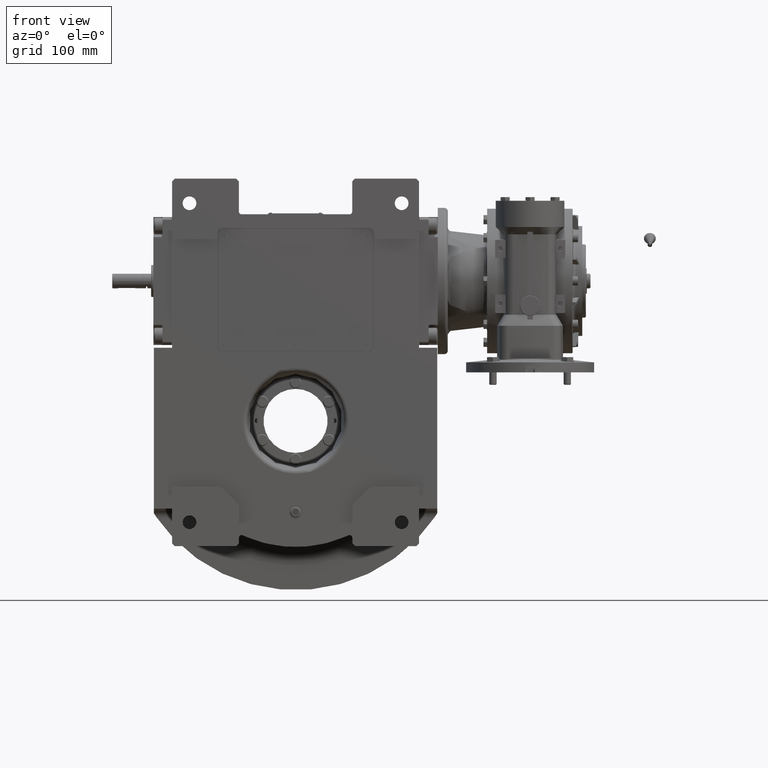
[diagram: clean part render]
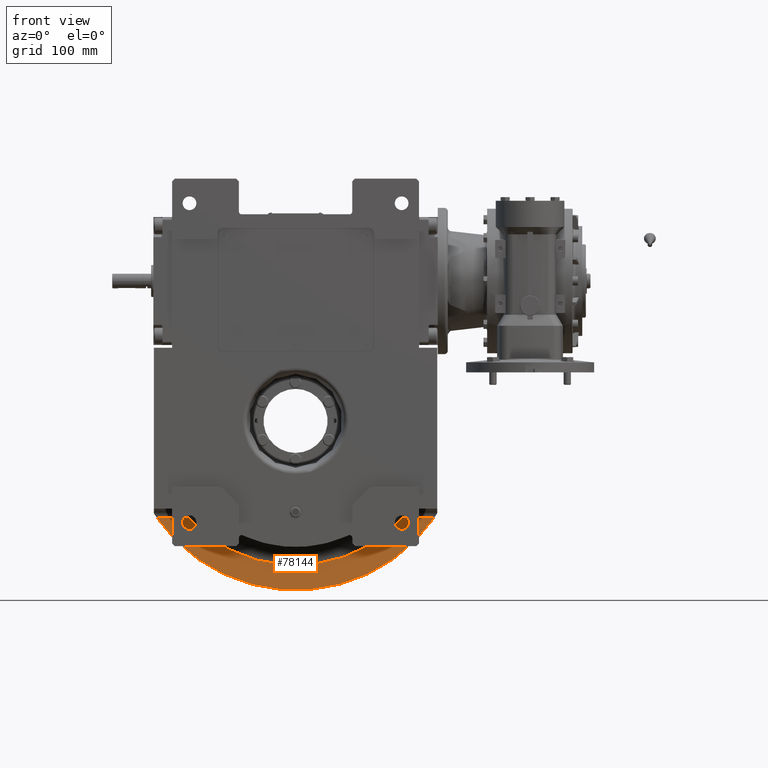
[diagram: same view with one face highlighted and labeled with its STEP entity id]
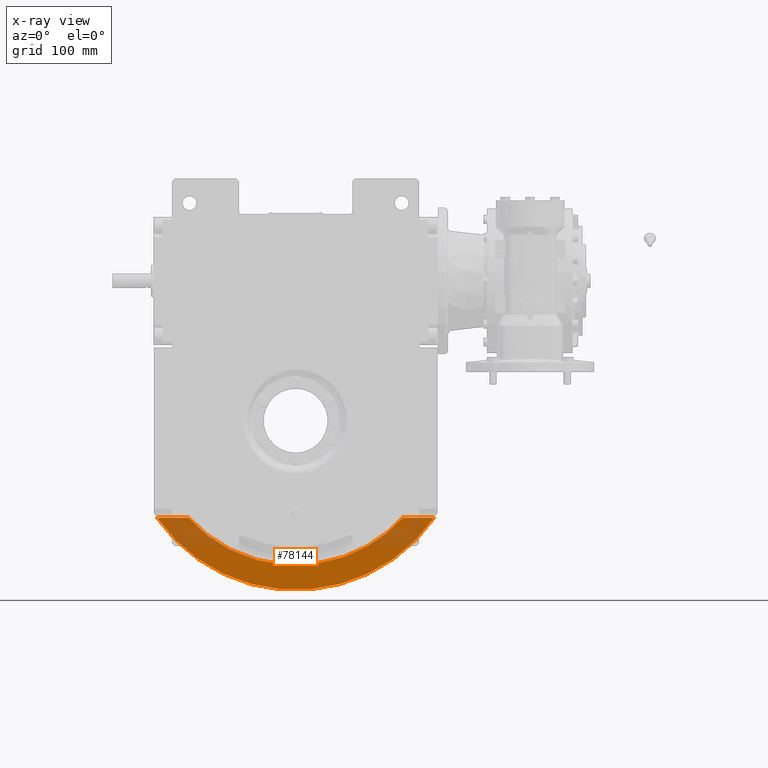
[diagram: x-ray of the same camera — body ghosted, the highlighted face saturated]
A machine part, front view. The second image highlights one B-rep face of the part: STEP entity #78144.
The next image is the same camera in x-ray: the body ghosted, the highlighted face saturated — about 22% of this face is hidden behind the body in this view.
In plain terms, the highlighted planar face has unit normal (0, -1, 0).
Its self-contained STEP definition (entity closure, byte-faithful):
#4145 = CARTESIAN_POINT ( 'NONE',  ( -112.2729284226672064, 45.00000000000000000, -111.4014722087630105 ) ) ;
#6148 = CARTESIAN_POINT ( 'NONE',  ( -83.96482471285699489, 45.00000000000000000, -134.4515343287771998 ) ) ;
#11416 = DIRECTION ( 'NONE',  ( 0.000000000000000000, 0.000000000000000000, 1.000000000000000000 ) ) ;
#13471 = EDGE_LOOP ( 'NONE', ( #95916, #69171, #116108, #14090 ) ) ;
#14090 = ORIENTED_EDGE ( 'NONE', *, *, #70703, .F. ) ;
#16499 = DIRECTION ( 'NONE',  ( 0.8195742627989930362, 0.000000000000000000, -0.5729729729729730048 ) ) ;
#23687 = VECTOR ( 'NONE', #114788, 1000.000000000000000 ) ;
#24535 = CARTESIAN_POINT ( 'NONE',  ( -101.7965497933509909, 45.00000000000000000, -121.4959109195396110 ) ) ;
#25366 = CARTESIAN_POINT ( 'NONE',  ( 0.000000000000000000, 45.00000000000000000, 0.000000000000000000 ) ) ;
#25878 = CARTESIAN_POINT ( 'NONE',  ( 101.7963591369399978, 45.00000000000000000, -121.4958819722340024 ) ) ;
#28813 = CARTESIAN_POINT ( 'NONE',  ( 151.6212386178135034, 45.00000000000000000, -106.0000000000000000 ) ) ;
#29507 = VERTEX_POINT ( 'NONE', #60538 ) ;
#31784 = CARTESIAN_POINT ( 'NONE',  ( 0.000000000000000000, 45.00000000000000000, 0.000000000000000000 ) ) ;
#31914 = DIRECTION ( 'NONE',  ( 1.000000000000000000, 0.000000000000000000, 0.000000000000000000 ) ) ;
#33751 = EDGE_CURVE ( 'NONE', #91801, #29507, #42090, .T. ) ;
#42090 = LINE ( 'NONE', #84179, #23687 ) ;
#43824 = VECTOR ( 'NONE', #31914, 1000.000000000000000 ) ;
#44030 = FACE_OUTER_BOUND ( 'NONE', #13471, .T. ) ;
#45613 = CARTESIAN_POINT ( 'NONE',  ( 83.96432363714549751, 45.00000000000000000, -134.4519182908271944 ) ) ;
#47240 = AXIS2_PLACEMENT_3D ( 'NONE', #25366, #129379, #16499 ) ;
#47621 = CARTESIAN_POINT ( 'NONE',  ( -43.59914018231270205, 45.00000000000000000, -152.4009961974019802 ) ) ;
#55124 = CARTESIAN_POINT ( 'NONE',  ( 64.41571053208309650, 45.00000000000000000, -144.8384350625149750 ) ) ;
#56034 = B_SPLINE_CURVE_WITH_KNOTS ( 'NONE', 3,
 ( #118317, #4145, #24535, #6148, #76854, #47621, #118991, #87726, #65993, #129214, #55124, #45613, #25878, #67338, #108801 ),
 .UNSPECIFIED., .F., .F.,
 ( 4, 1, 1, 1, 1, 1, 1, 1, 1, 1, 1, 1, 4 ),
 ( 0.000000000000000000, 0.08230548578115680358, 0.1657096187028465062, 0.2495666647837894991, 0.3333347921405555025, 0.4167731287220570180, 0.4999985279742490407, 0.5832235921521119471, 0.6666606947103590475, 0.7504274457011980148, 0.8342845243559869894, 0.9176906032219021014, 1.000000000000000000 ),
 .UNSPECIFIED. ) ;
#56170 = CARTESIAN_POINT ( 'NONE',  ( -117.1660380023439956, 45.00001431931600138, -105.9999239592122109 ) ) ;
#60538 = CARTESIAN_POINT ( 'NONE',  ( -151.6212386178135034, 45.00000000000000000, -106.0000000000000000 ) ) ;
#65993 = CARTESIAN_POINT ( 'NONE',  ( 21.98865651185845138, 45.00000000000000000, -156.9786712556644943 ) ) ;
#67338 = CARTESIAN_POINT ( 'NONE',  ( 112.2734842588863842, 45.00000000000000000, -111.4014792453958052 ) ) ;
#69171 = ORIENTED_EDGE ( 'NONE', *, *, #33751, .T. ) ;
#70703 = EDGE_CURVE ( 'NONE', #127888, #121868, #73379, .T. ) ;
#73379 = LINE ( 'NONE', #85599, #43824 ) ;
#76854 = CARTESIAN_POINT ( 'NONE',  ( -64.41635450183450473, 45.00000000000000000, -144.8381713325094324 ) ) ;
#78144 = ADVANCED_FACE ( 'NONE', ( #44030 ), #84111, .T. ) ;
#80346 = AXIS2_PLACEMENT_3D ( 'NONE', #31784, #126280, #11416 ) ;
#84111 = PLANE ( 'NONE',  #80346 ) ;
#84179 = CARTESIAN_POINT ( 'NONE',  ( -117.1655163986673927, 45.00000000000000000, -106.0000000000000000 ) ) ;
#85599 = CARTESIAN_POINT ( 'NONE',  ( 117.1665481270144085, 45.00000000000000000, -106.0000000000000000 ) ) ;
#87726 = CARTESIAN_POINT ( 'NONE',  ( -4.611055492802900184E-05, 45.00000000000000000, -158.5100177325210211 ) ) ;
#91801 = VERTEX_POINT ( 'NONE', #56170 ) ;
#95916 = ORIENTED_EDGE ( 'NONE', *, *, #116551, .F. ) ;
#97089 = CIRCLE ( 'NONE', #47240, 185.0000000000000000 ) ;
#102890 = CARTESIAN_POINT ( 'NONE',  ( 117.1665481270144085, 45.00000000000000000, -106.0000000000000000 ) ) ;
#108801 = CARTESIAN_POINT ( 'NONE',  ( 117.1665481270144085, 45.00000000000000000, -106.0000000000000000 ) ) ;
#114788 = DIRECTION ( 'NONE',  ( -1.000000000000000000, 0.000000000000000000, 0.000000000000000000 ) ) ;
#116108 = ORIENTED_EDGE ( 'NONE', *, *, #126518, .F. ) ;
#116551 = EDGE_CURVE ( 'NONE', #91801, #127888, #56034, .T. ) ;
#118317 = CARTESIAN_POINT ( 'NONE',  ( -117.1660380023439956, 45.00001431931600138, -105.9999239592122109 ) ) ;
#118991 = CARTESIAN_POINT ( 'NONE',  ( -21.98885812455705135, 45.00000000000000000, -156.9786534940434990 ) ) ;
#121868 = VERTEX_POINT ( 'NONE', #28813 ) ;
#126280 = DIRECTION ( 'NONE',  ( 0.000000000000000000, -1.000000000000000000, 0.000000000000000000 ) ) ;
#126518 = EDGE_CURVE ( 'NONE', #121868, #29507, #97089, .T. ) ;
#127888 = VERTEX_POINT ( 'NONE', #102890 ) ;
#129214 = CARTESIAN_POINT ( 'NONE',  ( 43.59869364544065462, 45.00000000000000000, -152.4011103777230005 ) ) ;
#129379 = DIRECTION ( 'NONE',  ( 0.000000000000000000, 1.000000000000000000, 0.000000000000000000 ) ) ;